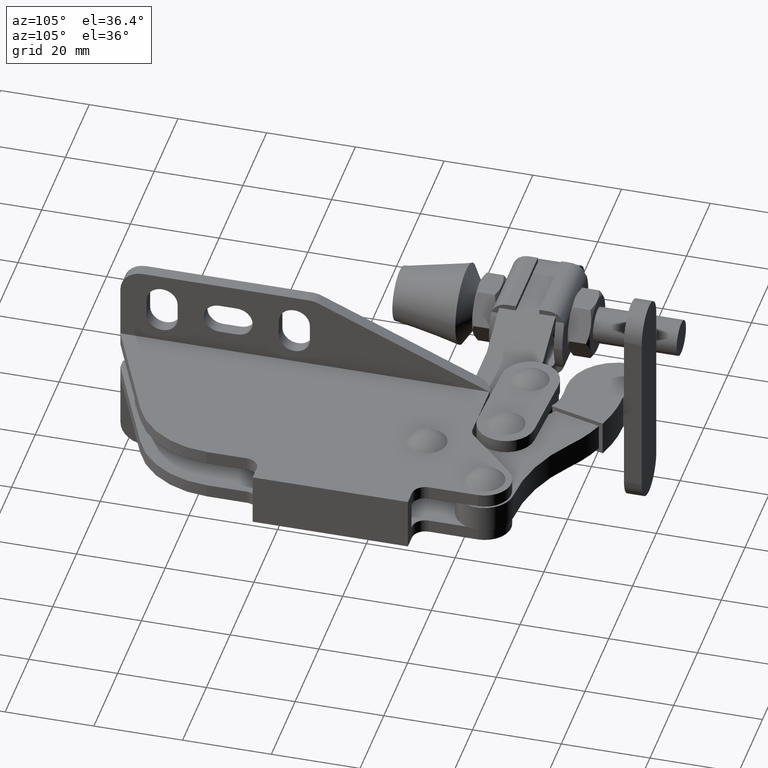
[diagram: clean part render]
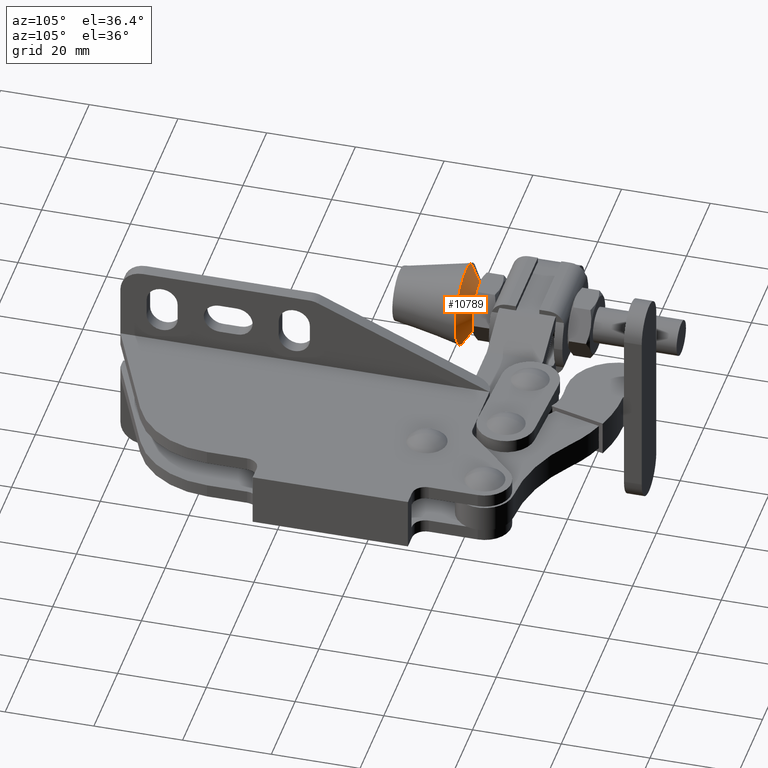
[diagram: same view with one face highlighted and labeled with its STEP entity id]
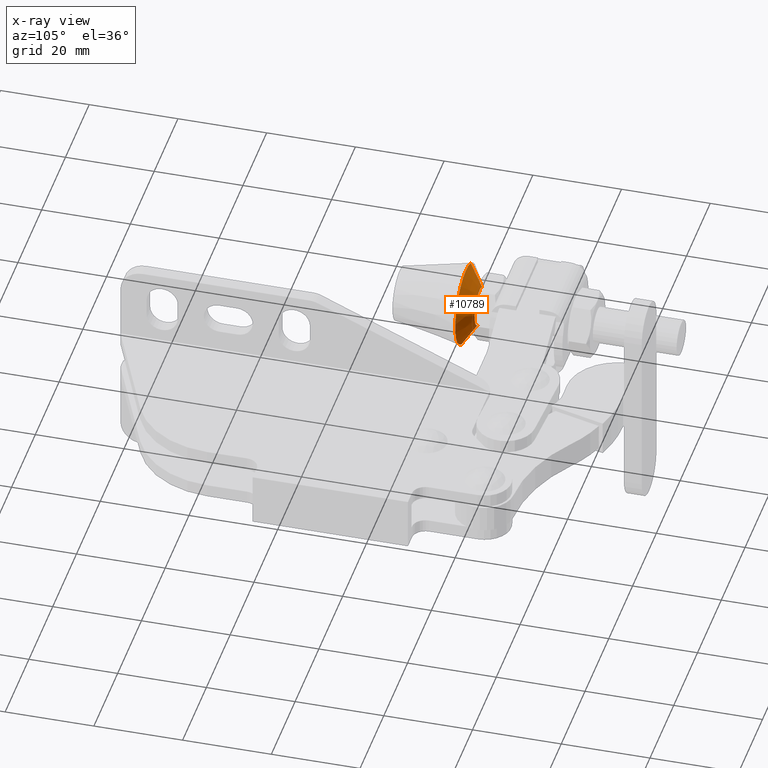
[diagram: x-ray of the same camera — body ghosted, the highlighted face saturated]
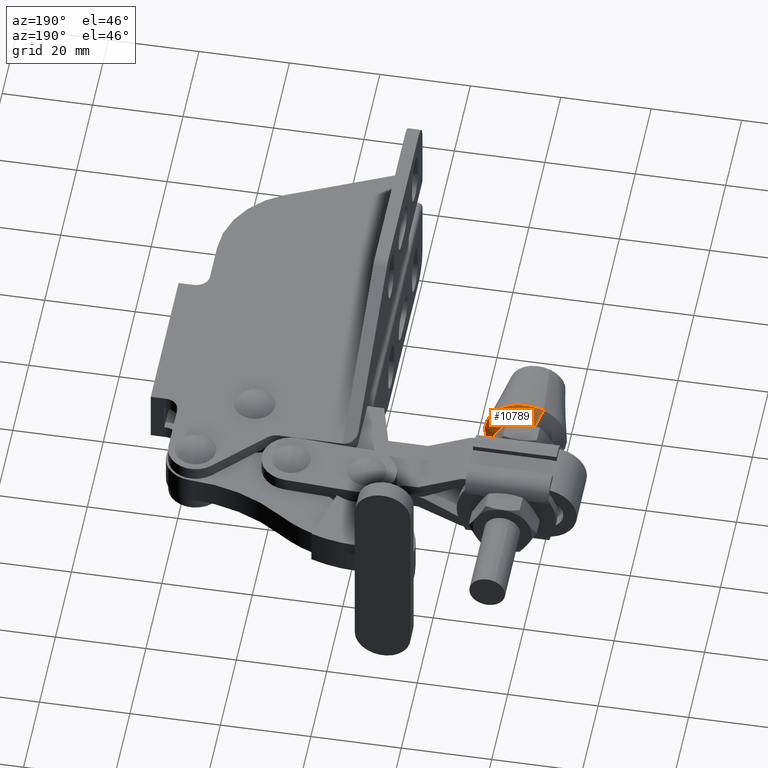
[diagram: same view with one face highlighted and labeled with its STEP entity id]
A machine part, auxiliary view. The second image highlights one B-rep face of the part: STEP entity #10789.
The next image is the same camera in x-ray: the body ghosted, the highlighted face saturated — about 0% of this face is hidden behind the body in this view.
A second angle (auxiliary view) of the same face is appended — the face is thin or edge-on in the first view.
In plain terms, the highlighted conical surface has half-angle 57.273 deg.
Its self-contained STEP definition (entity closure, byte-faithful):
#183 = CARTESIAN_POINT ( 'NONE',  ( -34.82465495830070500, 67.79999999999999700, -2.999999999999988900 ) ) ;
#237 = DIRECTION ( 'NONE',  ( 6.844972190226000900E-017, -1.000000000000000000, -1.521337052038029000E-016 ) ) ;
#808 = AXIS2_PLACEMENT_3D ( 'NONE', #8111, #960, #9292 ) ;
#960 = DIRECTION ( 'NONE',  ( 6.844972190226000900E-017, -1.000000000000000000, -1.521337052038029000E-016 ) ) ;
#1112 = CARTESIAN_POINT ( 'NONE',  ( -30.91032751124386700, 67.79999999999999700, -11.21511050669541200 ) ) ;
#1384 = VERTEX_POINT ( 'NONE', #9117 ) ;
#1448 = ORIENTED_EDGE ( 'NONE', *, *, #9631, .T. ) ;
#1478 = DIRECTION ( 'NONE',  ( 0.4301458733029491800, 0.0000000000000000000, -0.9027593963401562300 ) ) ;
#1744 = EDGE_LOOP ( 'NONE', ( #14287, #1448, #14208, #14496 ) ) ;
#2242 = AXIS2_PLACEMENT_3D ( 'NONE', #183, #237, #1478 ) ;
#2339 = CARTESIAN_POINT ( 'NONE',  ( -38.73898240535754700, 67.79999999999999700, 5.215110506695434200 ) ) ;
#4624 = CONICAL_SURFACE ( 'NONE', #2242, 9.100000000000001400, 0.9996064992881813500 ) ;
#4863 = LINE ( 'NONE', #1112, #10417 ) ;
#5282 = CARTESIAN_POINT ( 'NONE',  ( -34.82465495830070500, 70.88000000000006700, -2.999999999999988000 ) ) ;
#5444 = CIRCLE ( 'NONE', #13505, 4.307333333333249700 ) ;
#6112 = FACE_OUTER_BOUND ( 'NONE', #1744, .T. ) ;
#6478 = DIRECTION ( 'NONE',  ( 1.000000000000000000, 0.0000000000000000000, 0.0000000000000000000 ) ) ;
#8111 = CARTESIAN_POINT ( 'NONE',  ( -34.82465495830070500, 67.79999999999999700, -2.999999999999988900 ) ) ;
#8835 = CARTESIAN_POINT ( 'NONE',  ( -38.73898240535754700, 67.79999999999999700, 5.215110506695432400 ) ) ;
#9117 = CARTESIAN_POINT ( 'NONE',  ( -30.91032751124387400, 67.79999999999999700, -11.21511050669541200 ) ) ;
#9292 = DIRECTION ( 'NONE',  ( 0.4301458733029491800, 0.0000000000000000000, -0.9027593963401562300 ) ) ;
#9381 = VERTEX_POINT ( 'NONE', #8835 ) ;
#9536 = EDGE_CURVE ( 'NONE', #1384, #9381, #11552, .T. ) ;
#9631 = EDGE_CURVE ( 'NONE', #14355, #9381, #13175, .T. ) ;
#9653 = EDGE_CURVE ( 'NONE', #13031, #1384, #4863, .T. ) ;
#10037 = VECTOR ( 'NONE', #13003, 1000.000000000000200 ) ;
#10357 = CARTESIAN_POINT ( 'NONE',  ( -36.67743661657423400, 70.88000000000006700, 0.8884856398357560100 ) ) ;
#10417 = VECTOR ( 'NONE', #14368, 1000.000000000000100 ) ;
#10789 = ADVANCED_FACE ( 'NONE', ( #6112 ), #4624, .T. ) ;
#11552 = CIRCLE ( 'NONE', #808, 9.100000000000001400 ) ;
#13003 = DIRECTION ( 'NONE',  ( -0.3618637905674916300, -0.5406333834601281300, 0.7594538443938384500 ) ) ;
#13031 = VERTEX_POINT ( 'NONE', #13367 ) ;
#13175 = LINE ( 'NONE', #2339, #10037 ) ;
#13367 = CARTESIAN_POINT ( 'NONE',  ( -32.97187330002718400, 70.88000000000006700, -6.888485639835730400 ) ) ;
#13505 = AXIS2_PLACEMENT_3D ( 'NONE', #5282, #13546, #6478 ) ;
#13546 = DIRECTION ( 'NONE',  ( 5.551115123125787600E-017, 1.000000000000000000, 1.821459649775638500E-017 ) ) ;
#13658 = EDGE_CURVE ( 'NONE', #14355, #13031, #5444, .T. ) ;
#14208 = ORIENTED_EDGE ( 'NONE', *, *, #9536, .F. ) ;
#14287 = ORIENTED_EDGE ( 'NONE', *, *, #13658, .F. ) ;
#14355 = VERTEX_POINT ( 'NONE', #10357 ) ;
#14368 = DIRECTION ( 'NONE',  ( 0.3618637905674917900, -0.5406333834601277900, -0.7594538443938385600 ) ) ;
#14496 = ORIENTED_EDGE ( 'NONE', *, *, #9653, .F. ) ;